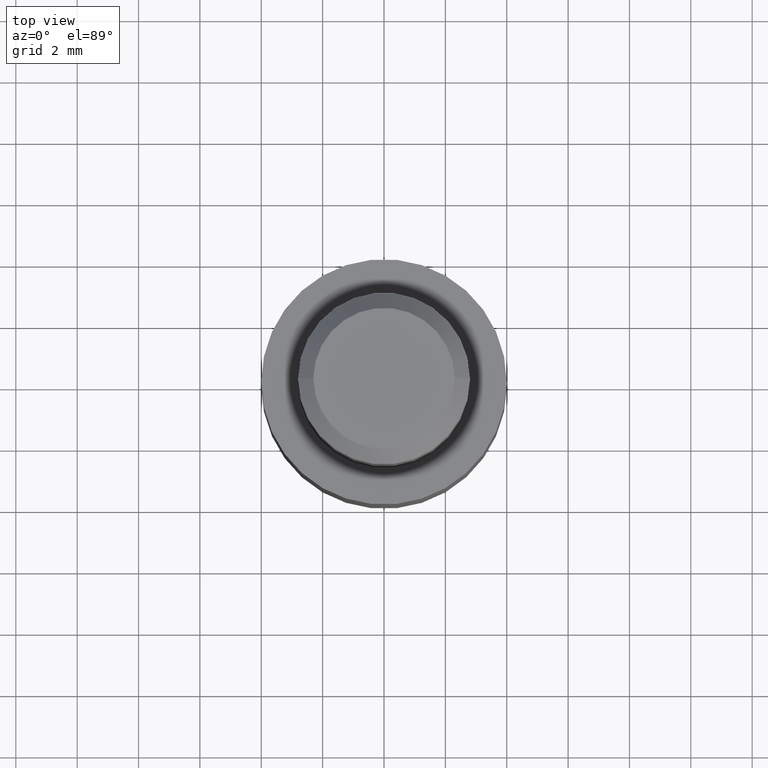
[diagram: clean part render]
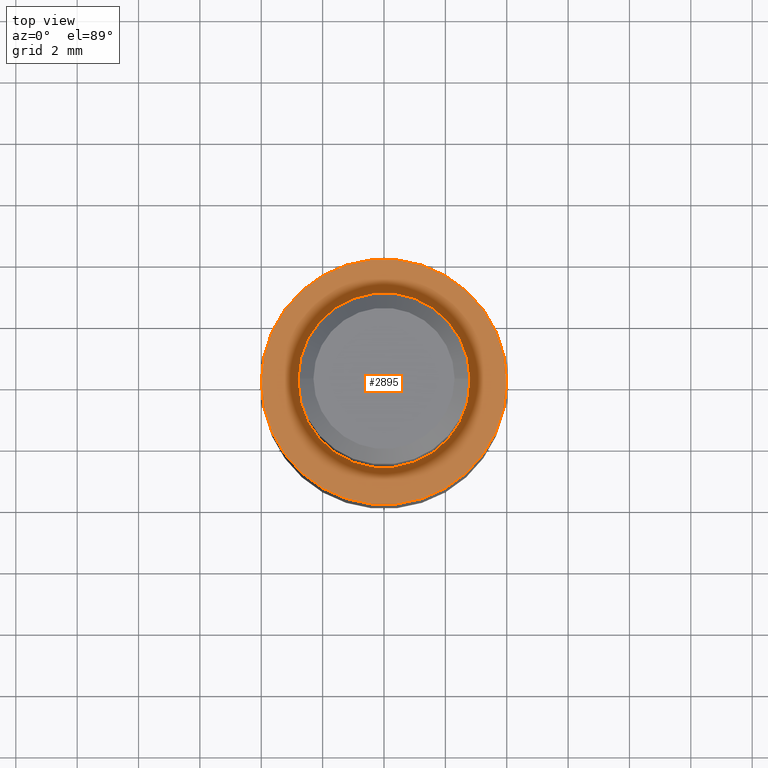
[diagram: same view with one face highlighted and labeled with its STEP entity id]
A machine part, top view. The second image highlights one B-rep face of the part: STEP entity #2895.
In plain terms, the highlighted planar face has unit normal (0, 0, 1).
Its self-contained STEP definition (entity closure, byte-faithful):
#99 = CARTESIAN_POINT ( 'NONE',  ( 0.0000000000000000000, 0.0000000000000000000, 8.000000000000000000 ) ) ;
#146 = DIRECTION ( 'NONE',  ( 0.0000000000000000000, 0.0000000000000000000, 1.000000000000000000 ) ) ;
#648 = CARTESIAN_POINT ( 'NONE',  ( 2.799999999999999800, 3.429011037612588800E-016, 8.000000000000000000 ) ) ;
#749 = CARTESIAN_POINT ( 'NONE',  ( -2.799999999999999800, 0.0000000000000000000, 8.000000000000000000 ) ) ;
#904 = DIRECTION ( 'NONE',  ( 0.0000000000000000000, 0.0000000000000000000, 1.000000000000000000 ) ) ;
#953 = AXIS2_PLACEMENT_3D ( 'NONE', #99, #904, #4568 ) ;
#1211 = EDGE_CURVE ( 'NONE', #11053, #3094, #9037, .T. ) ;
#1834 = ORIENTED_EDGE ( 'NONE', *, *, #1211, .F. ) ;
#1868 = PLANE ( 'NONE',  #8129 ) ;
#1875 = FACE_BOUND ( 'NONE', #2521, .T. ) ;
#1985 = CARTESIAN_POINT ( 'NONE',  ( 0.0000000000000000000, 0.0000000000000000000, 8.000000000000000000 ) ) ;
#2338 = EDGE_LOOP ( 'NONE', ( #7573, #5441 ) ) ;
#2521 = EDGE_LOOP ( 'NONE', ( #7997, #1834 ) ) ;
#2735 = FACE_OUTER_BOUND ( 'NONE', #2338, .T. ) ;
#2895 = ADVANCED_FACE ( 'NONE', ( #2735, #1875 ), #1868, .T. ) ;
#3094 = VERTEX_POINT ( 'NONE', #749 ) ;
#3165 = CIRCLE ( 'NONE', #4362, 4.000000000000000000 ) ;
#3232 = CARTESIAN_POINT ( 'NONE',  ( 0.0000000000000000000, 0.0000000000000000000, 8.000000000000000000 ) ) ;
#4113 = DIRECTION ( 'NONE',  ( 0.0000000000000000000, 0.0000000000000000000, 1.000000000000000000 ) ) ;
#4362 = AXIS2_PLACEMENT_3D ( 'NONE', #9082, #146, #4611 ) ;
#4568 = DIRECTION ( 'NONE',  ( 1.000000000000000000, 0.0000000000000000000, 0.0000000000000000000 ) ) ;
#4611 = DIRECTION ( 'NONE',  ( 1.000000000000000000, 0.0000000000000000000, 0.0000000000000000000 ) ) ;
#4849 = EDGE_CURVE ( 'NONE', #9153, #5178, #3165, .T. ) ;
#5178 = VERTEX_POINT ( 'NONE', #6617 ) ;
#5441 = ORIENTED_EDGE ( 'NONE', *, *, #8512, .T. ) ;
#5977 = CARTESIAN_POINT ( 'NONE',  ( -4.000000000000000000, 0.0000000000000000000, 8.000000000000000000 ) ) ;
#6010 = CIRCLE ( 'NONE', #9090, 2.799999999999999800 ) ;
#6385 = DIRECTION ( 'NONE',  ( 1.000000000000000000, 0.0000000000000000000, -0.0000000000000000000 ) ) ;
#6429 = DIRECTION ( 'NONE',  ( 0.0000000000000000000, 0.0000000000000000000, 1.000000000000000000 ) ) ;
#6617 = CARTESIAN_POINT ( 'NONE',  ( 4.000000000000000000, 4.898587196589412800E-016, 8.000000000000000000 ) ) ;
#7573 = ORIENTED_EDGE ( 'NONE', *, *, #4849, .T. ) ;
#7612 = EDGE_CURVE ( 'NONE', #3094, #11053, #6010, .T. ) ;
#7997 = ORIENTED_EDGE ( 'NONE', *, *, #7612, .F. ) ;
#8129 = AXIS2_PLACEMENT_3D ( 'NONE', #1985, #6429, #6385 ) ;
#8512 = EDGE_CURVE ( 'NONE', #5178, #9153, #9741, .T. ) ;
#8624 = DIRECTION ( 'NONE',  ( 1.000000000000000000, 0.0000000000000000000, 0.0000000000000000000 ) ) ;
#9037 = CIRCLE ( 'NONE', #953, 2.799999999999999800 ) ;
#9082 = CARTESIAN_POINT ( 'NONE',  ( 0.0000000000000000000, 0.0000000000000000000, 8.000000000000000000 ) ) ;
#9090 = AXIS2_PLACEMENT_3D ( 'NONE', #3232, #10368, #8624 ) ;
#9153 = VERTEX_POINT ( 'NONE', #5977 ) ;
#9250 = AXIS2_PLACEMENT_3D ( 'NONE', #10276, #4113, #10490 ) ;
#9741 = CIRCLE ( 'NONE', #9250, 4.000000000000000000 ) ;
#10276 = CARTESIAN_POINT ( 'NONE',  ( 0.0000000000000000000, 0.0000000000000000000, 8.000000000000000000 ) ) ;
#10368 = DIRECTION ( 'NONE',  ( 0.0000000000000000000, 0.0000000000000000000, 1.000000000000000000 ) ) ;
#10490 = DIRECTION ( 'NONE',  ( 1.000000000000000000, 0.0000000000000000000, 0.0000000000000000000 ) ) ;
#11053 = VERTEX_POINT ( 'NONE', #648 ) ;